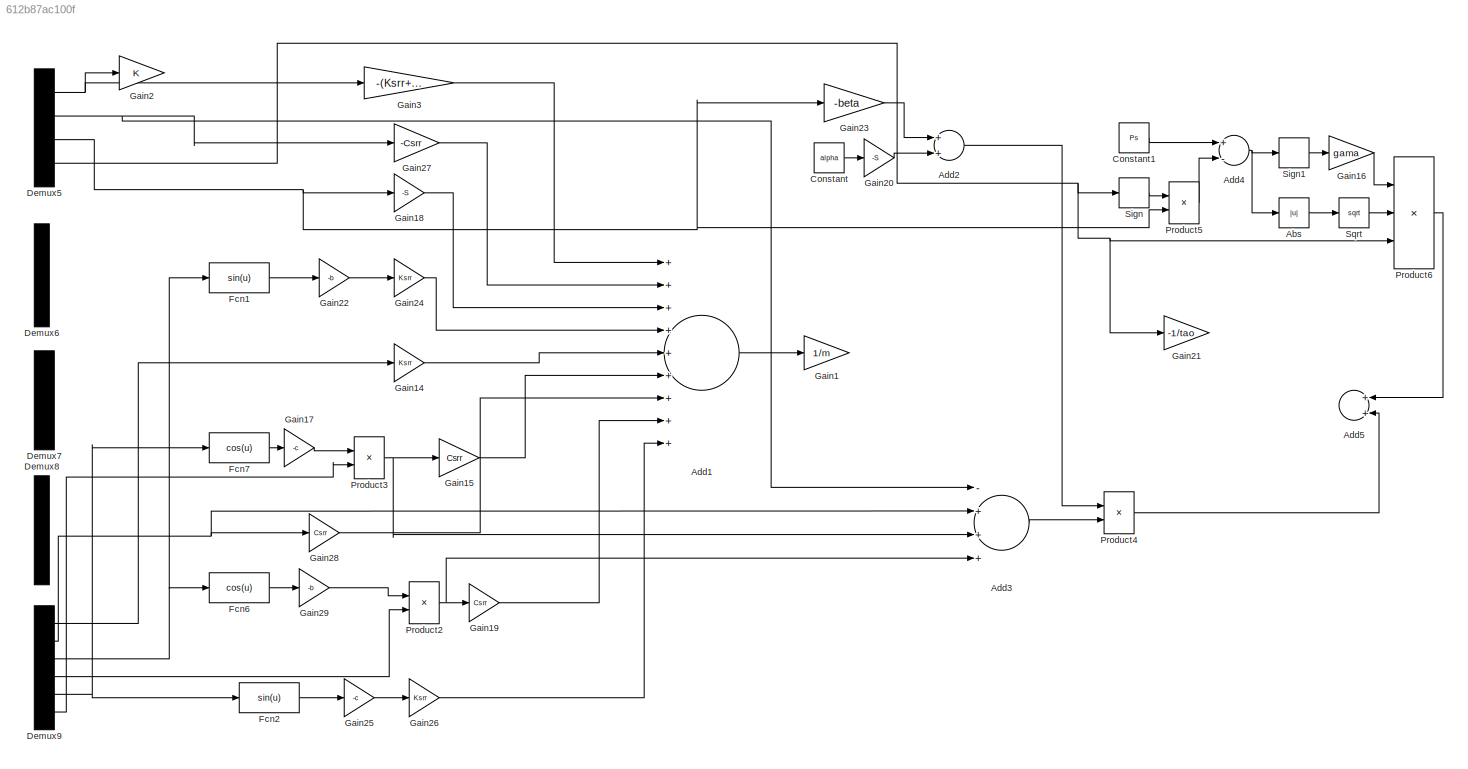
MODEL slx_612b87ac100f
KIND model
CONFIG AbsTol = auto
CONFIG FixedStep = auto
CONFIG MaxStep = auto
CONFIG MinStep = auto
CONFIG RelTol = 1e-3
CONFIG SampleTimeConstraint = Unconstrained
CONFIG Solver = VariableStepAuto
CONFIG SolverMode = Auto
CONFIG SolverName = VariableStepAuto
CONFIG StartTime = 0.0
CONFIG StopTime = 10.0
BLOCK [Abs] Abs
  SaturateOnIntegerOverflow = off
BLOCK [Sum] Add1
  InputSameDT = off
  Inputs = +++++++++
  OutDataTypeStr = Inherit: Inherit via internal rule
  Ports = [9, 1]
  SaturateOnIntegerOverflow = off
BLOCK [Sum] Add2
  InputSameDT = off
  OutDataTypeStr = Inherit: Inherit via internal rule
  Ports = [2, 1]
  SaturateOnIntegerOverflow = off
BLOCK [Sum] Add3
  InputSameDT = off
  Inputs = -+++
  OutDataTypeStr = Inherit: Inherit via internal rule
  Ports = [4, 1]
  SaturateOnIntegerOverflow = off
BLOCK [Sum] Add4
  InputSameDT = off
  Inputs = +-
  OutDataTypeStr = Inherit: Inherit via internal rule
  Ports = [2, 1]
  SaturateOnIntegerOverflow = off
BLOCK [Sum] Add5
  InputSameDT = off
  OutDataTypeStr = Inherit: Inherit via internal rule
  Ports = [2, 1]
  SaturateOnIntegerOverflow = off
BLOCK [Constant] Constant
  Value = alpha
BLOCK [Constant] Constant1
  Value = Ps
BLOCK [Demux] Demux5
  DisplayOption = bar
  Ports = [1, 4]
BLOCK [Demux] Demux6
  DisplayOption = bar
  Ports = [1, 4]
BLOCK [Demux] Demux7
  DisplayOption = bar
  Ports = [1, 4]
BLOCK [Demux] Demux8
  DisplayOption = bar
  Ports = [1, 4]
BLOCK [Demux] Demux9
  DisplayOption = bar
  Outputs = 6
  Ports = [1, 6]
BLOCK [Fcn] Fcn1
  Expr = sin(u)
BLOCK [Fcn] Fcn2
  Expr = sin(u)
BLOCK [Fcn] Fcn6
  Expr = cos(u)
BLOCK [Fcn] Fcn7
  Expr = cos(u)
BLOCK [Gain] Gain1
  Gain = 1/m
  OutDataTypeStr = Inherit: Inherit via internal rule
  ParamDataTypeStr = Inherit: Inherit via internal rule
  SaturateOnIntegerOverflow = off
BLOCK [Gain] Gain14
  Gain = Ksrr
  OutDataTypeStr = Inherit: Inherit via internal rule
  ParamDataTypeStr = Inherit: Inherit via internal rule
  SaturateOnIntegerOverflow = off
BLOCK [Gain] Gain15
  Gain = Csrr
  OutDataTypeStr = Inherit: Inherit via internal rule
  ParamDataTypeStr = Inherit: Inherit via internal rule
  SaturateOnIntegerOverflow = off
BLOCK [Gain] Gain16
  Gain = gama
  OutDataTypeStr = Inherit: Inherit via internal rule
  ParamDataTypeStr = Inherit: Inherit via internal rule
  SaturateOnIntegerOverflow = off
BLOCK [Gain] Gain17
  Gain = -c
  OutDataTypeStr = Inherit: Inherit via internal rule
  ParamDataTypeStr = Inherit: Inherit via internal rule
  SaturateOnIntegerOverflow = off
BLOCK [Gain] Gain18
  Gain = -S
  OutDataTypeStr = Inherit: Inherit via internal rule
  ParamDataTypeStr = Inherit: Inherit via internal rule
  SaturateOnIntegerOverflow = off
BLOCK [Gain] Gain19
  Gain = Csrr
  OutDataTypeStr = Inherit: Inherit via internal rule
  ParamDataTypeStr = Inherit: Inherit via internal rule
  SaturateOnIntegerOverflow = off
BLOCK [Gain] Gain2
  OutDataTypeStr = Inherit: Inherit via internal rule
  ParamDataTypeStr = Inherit: Inherit via internal rule
  SaturateOnIntegerOverflow = off
BLOCK [Gain] Gain20
  Gain = -S
  OutDataTypeStr = Inherit: Inherit via internal rule
  ParamDataTypeStr = Inherit: Inherit via internal rule
  SaturateOnIntegerOverflow = off
BLOCK [Gain] Gain21
  Gain = -1/tao
  OutDataTypeStr = Inherit: Inherit via internal rule
  ParamDataTypeStr = Inherit: Inherit via internal rule
  SaturateOnIntegerOverflow = off
BLOCK [Gain] Gain22
  Gain = -b
  OutDataTypeStr = Inherit: Inherit via internal rule
  ParamDataTypeStr = Inherit: Inherit via internal rule
  SaturateOnIntegerOverflow = off
BLOCK [Gain] Gain23
  Gain = -beta
  OutDataTypeStr = Inherit: Inherit via internal rule
  ParamDataTypeStr = Inherit: Inherit via internal rule
  SaturateOnIntegerOverflow = off
BLOCK [Gain] Gain24
  Gain = Ksrr
  OutDataTypeStr = Inherit: Inherit via internal rule
  ParamDataTypeStr = Inherit: Inherit via internal rule
  SaturateOnIntegerOverflow = off
BLOCK [Gain] Gain25
  Gain = -c
  OutDataTypeStr = Inherit: Inherit via internal rule
  ParamDataTypeStr = Inherit: Inherit via internal rule
  SaturateOnIntegerOverflow = off
BLOCK [Gain] Gain26
  Gain = Ksrr
  OutDataTypeStr = Inherit: Inherit via internal rule
  ParamDataTypeStr = Inherit: Inherit via internal rule
  SaturateOnIntegerOverflow = off
BLOCK [Gain] Gain27
  Gain = -Csrr
  OutDataTypeStr = Inherit: Inherit via internal rule
  ParamDataTypeStr = Inherit: Inherit via internal rule
  SaturateOnIntegerOverflow = off
BLOCK [Gain] Gain28
  Gain = Csrr
  OutDataTypeStr = Inherit: Inherit via internal rule
  ParamDataTypeStr = Inherit: Inherit via internal rule
  SaturateOnIntegerOverflow = off
BLOCK [Gain] Gain29
  Gain = -b
  OutDataTypeStr = Inherit: Inherit via internal rule
  ParamDataTypeStr = Inherit: Inherit via internal rule
  SaturateOnIntegerOverflow = off
BLOCK [Gain] Gain3
  Gain = -(Ksrr+Kurr)
  OutDataTypeStr = Inherit: Inherit via internal rule
  ParamDataTypeStr = Inherit: Inherit via internal rule
  SaturateOnIntegerOverflow = off
BLOCK [Product] Product2
  InputSameDT = off
  OutDataTypeStr = Inherit: Inherit via internal rule
  Ports = [2, 1]
  RndMeth = Floor
  SaturateOnIntegerOverflow = off
BLOCK [Product] Product3
  InputSameDT = off
  OutDataTypeStr = Inherit: Inherit via internal rule
  Ports = [2, 1]
  RndMeth = Floor
  SaturateOnIntegerOverflow = off
BLOCK [Product] Product4
  InputSameDT = off
  OutDataTypeStr = Inherit: Inherit via internal rule
  Ports = [2, 1]
  RndMeth = Floor
  SaturateOnIntegerOverflow = off
BLOCK [Product] Product5
  InputSameDT = off
  OutDataTypeStr = Inherit: Inherit via internal rule
  Ports = [2, 1]
  RndMeth = Floor
  SaturateOnIntegerOverflow = off
BLOCK [Product] Product6
  InputSameDT = off
  Inputs = 3
  OutDataTypeStr = Inherit: Inherit via internal rule
  Ports = [3, 1]
  RndMeth = Floor
  SaturateOnIntegerOverflow = off
BLOCK [Signum] Sign
BLOCK [Signum] Sign1
BLOCK [Sqrt] Sqrt
LINE Abs:1 -> Sqrt:1
LINE Add1:1 -> Gain1:1
LINE Add2:1 -> Product4:1
LINE Add3:1 -> Product4:2
NET Add4:1 -> Abs:1, Sign1:1
LINE Constant1:1 -> Add4:1
LINE Constant:1 -> Gain20:1
NET Demux5:1 -> Gain2:1, Gain3:1
NET Demux5:2 -> Add3:1, Gain27:1
NET Demux5:3 -> Gain18:1, Gain23:1, Product5:2
NET Demux5:4 -> Gain21:1, Product6:3, Sign:1
LINE Demux9:1 -> Gain14:1
NET Demux9:2 -> Add3:2, Gain28:1
NET Demux9:3 -> Fcn1:1, Fcn6:1
LINE Demux9:4 -> Product2:2
NET Demux9:5 -> Fcn2:1, Fcn7:1
LINE Demux9:6 -> Product3:2
LINE Fcn1:1 -> Gain22:1
LINE Fcn2:1 -> Gain25:1
LINE Fcn6:1 -> Gain29:1
LINE Fcn7:1 -> Gain17:1
LINE Gain14:1 -> Add1:5
LINE Gain15:1 -> Add1:6
LINE Gain16:1 -> Product6:1
LINE Gain17:1 -> Product3:1
LINE Gain18:1 -> Add1:3
LINE Gain19:1 -> Add1:8
LINE Gain20:1 -> Add2:2
LINE Gain22:1 -> Gain24:1
LINE Gain23:1 -> Add2:1
LINE Gain24:1 -> Add1:4
LINE Gain25:1 -> Gain26:1
LINE Gain26:1 -> Add1:9
LINE Gain27:1 -> Add1:2
LINE Gain28:1 -> Add1:7
LINE Gain29:1 -> Product2:1
LINE Gain3:1 -> Add1:1
NET Product2:1 -> Add3:4, Gain19:1
NET Product3:1 -> Add3:3, Gain15:1
LINE Product4:1 -> Add5:2
LINE Product5:1 -> Add4:2
LINE Product6:1 -> Add5:1
LINE Sign1:1 -> Gain16:1
LINE Sign:1 -> Product5:1
LINE Sqrt:1 -> Product6:2
note: NET lines group one-source signal fan-out (src -> all destinations, sorted); 1:1 wires keep LINE
